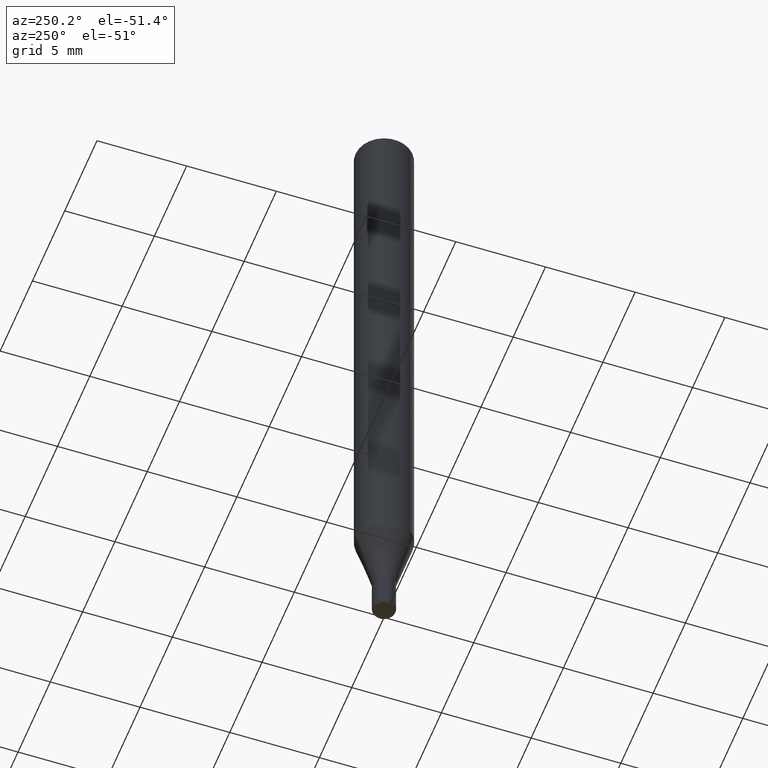
[diagram: clean part render]
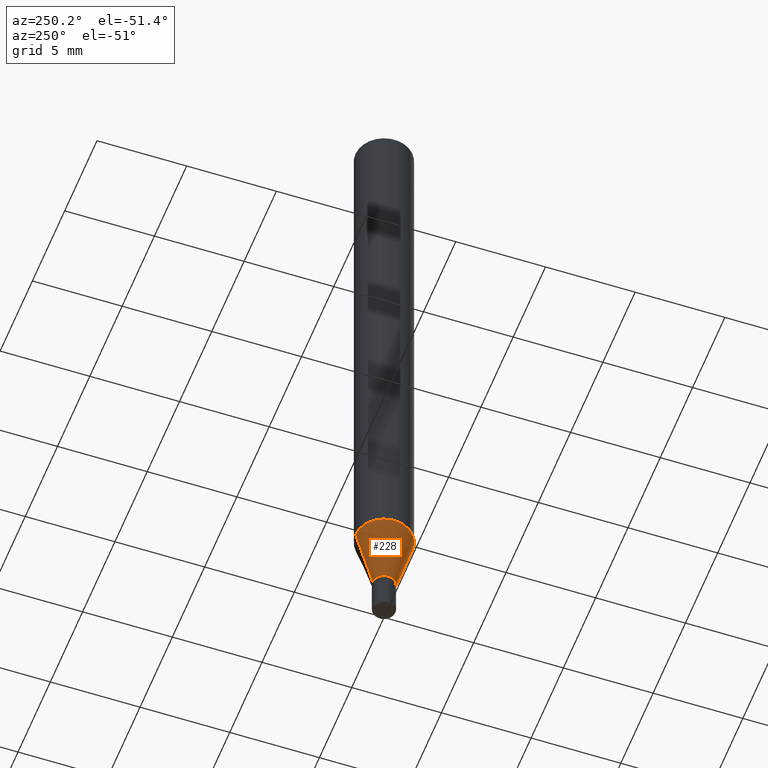
[diagram: same view with one face highlighted and labeled with its STEP entity id]
A machine part, auxiliary view. The second image highlights one B-rep face of the part: STEP entity #228.
In plain terms, the highlighted conical surface has half-angle 15 deg.
Its self-contained STEP definition (entity closure, byte-faithful):
#9 = ORIENTED_EDGE ( 'NONE', *, *, #67, .T. ) ;
#31 = AXIS2_PLACEMENT_3D ( 'NONE', #108, #118, #440 ) ;
#35 = EDGE_CURVE ( 'NONE', #439, #178, #335, .T. ) ;
#36 = DIRECTION ( 'NONE',  ( -2.445546592424236492E-29, 3.491369944521436528E-15, 1.000000000000000000 ) ) ;
#39 = VECTOR ( 'NONE', #433, 39.37007874015748854 ) ;
#67 = EDGE_CURVE ( 'NONE', #214, #79, #347, .T. ) ;
#78 = DIRECTION ( 'NONE',  ( -6.982962677686265922E-15, -1.000000000000000000, 0.000000000000000000 ) ) ;
#79 = VERTEX_POINT ( 'NONE', #394 ) ;
#95 = CIRCLE ( 'NONE', #31, 0.06250000000000000000 ) ;
#108 = CARTESIAN_POINT ( 'NONE',  ( 3.118189523210138983E-29, -4.451664595711349999E-15, -1.275048094716167757 ) ) ;
#118 = DIRECTION ( 'NONE',  ( -2.445546592424236492E-29, 3.491369944521436528E-15, 1.000000000000000000 ) ) ;
#137 = VECTOR ( 'NONE', #492, 39.37007874015748854 ) ;
#138 = CIRCLE ( 'NONE', #248, 0.02500000000000010200 ) ;
#171 = EDGE_LOOP ( 'NONE', ( #253, #205, #9, #245 ) ) ;
#178 = VERTEX_POINT ( 'NONE', #345 ) ;
#190 = AXIS2_PLACEMENT_3D ( 'NONE', #399, #354, #78 ) ;
#205 = ORIENTED_EDGE ( 'NONE', *, *, #255, .T. ) ;
#214 = VERTEX_POINT ( 'NONE', #282 ) ;
#228 = ADVANCED_FACE ( 'NONE', ( #235 ), #473, .T. ) ;
#235 = FACE_OUTER_BOUND ( 'NONE', #171, .T. ) ;
#245 = ORIENTED_EDGE ( 'NONE', *, *, #312, .F. ) ;
#248 = AXIS2_PLACEMENT_3D ( 'NONE', #317, #36, #401 ) ;
#253 = ORIENTED_EDGE ( 'NONE', *, *, #35, .F. ) ;
#255 = EDGE_CURVE ( 'NONE', #439, #214, #138, .T. ) ;
#282 = CARTESIAN_POINT ( 'NONE',  ( -1.745740669421227467E-16, -0.02500000000000503902, -1.415000000000000258 ) ) ;
#295 = CARTESIAN_POINT ( 'NONE',  ( 1.776356839400603332E-16, 0.02499999999999516151, -1.415000000000000258 ) ) ;
#310 = CARTESIAN_POINT ( 'NONE',  ( -1.745740669421227467E-16, -0.02500000000000503902, -1.415000000000000258 ) ) ;
#312 = EDGE_CURVE ( 'NONE', #178, #79, #95, .T. ) ;
#317 = CARTESIAN_POINT ( 'NONE',  ( 3.460448428280295330E-29, -4.940288471497833014E-15, -1.415000000000000258 ) ) ;
#335 = LINE ( 'NONE', #295, #137 ) ;
#345 = CARTESIAN_POINT ( 'NONE',  ( 4.440892098500935790E-16, 0.06249999999999553135, -1.275048094716167979 ) ) ;
#347 = LINE ( 'NONE', #310, #39 ) ;
#354 = DIRECTION ( 'NONE',  ( -2.445546592424236492E-29, 3.491369944521436528E-15, 1.000000000000000000 ) ) ;
#374 = CARTESIAN_POINT ( 'NONE',  ( 3.108624468950771410E-16, 0.02499999999999516151, -1.415000000000000258 ) ) ;
#394 = CARTESIAN_POINT ( 'NONE',  ( -4.364351673553606080E-16, -0.06250000000000446865, -1.275048094716167535 ) ) ;
#399 = CARTESIAN_POINT ( 'NONE',  ( 3.460448428280295330E-29, -4.940288471497833014E-15, -1.415000000000000258 ) ) ;
#401 = DIRECTION ( 'NONE',  ( -6.982962677686265922E-15, -1.000000000000000000, 0.000000000000000000 ) ) ;
#433 = DIRECTION ( 'NONE',  ( -1.807323732225323434E-15, -0.2588190451025172423, 0.9659258262890690894 ) ) ;
#439 = VERTEX_POINT ( 'NONE', #374 ) ;
#440 = DIRECTION ( 'NONE',  ( -6.982962677686265922E-15, -1.000000000000000000, 4.370956789862821150E-15 ) ) ;
#473 = CONICAL_SURFACE ( 'NONE', #190, 0.02500000000000010200, 0.2617993877991493523 ) ;
#492 = DIRECTION ( 'NONE',  ( 1.839019923739593610E-15, 0.2588190451025240146, 0.9659258262890673130 ) ) ;